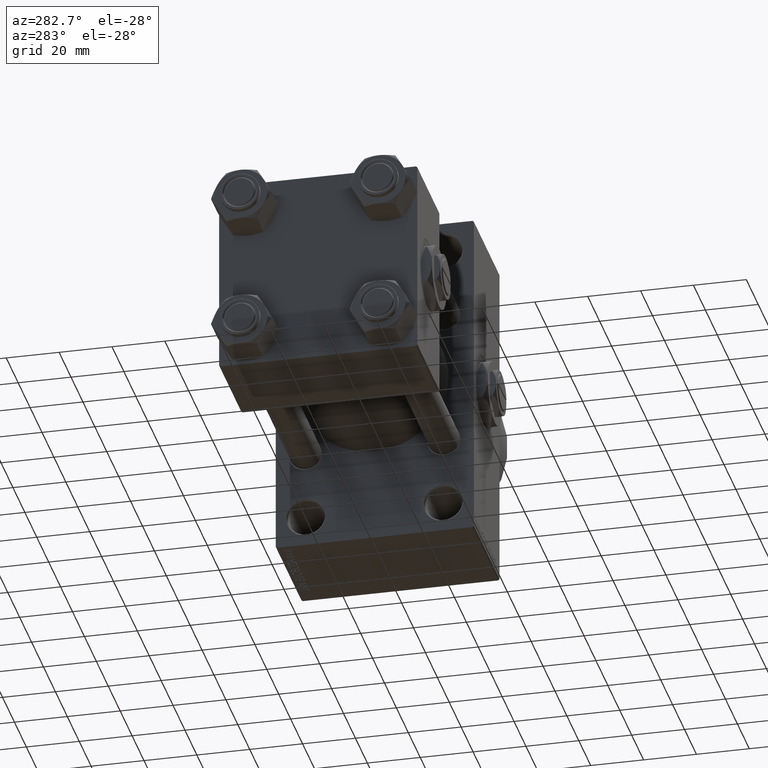
[diagram: clean part render]
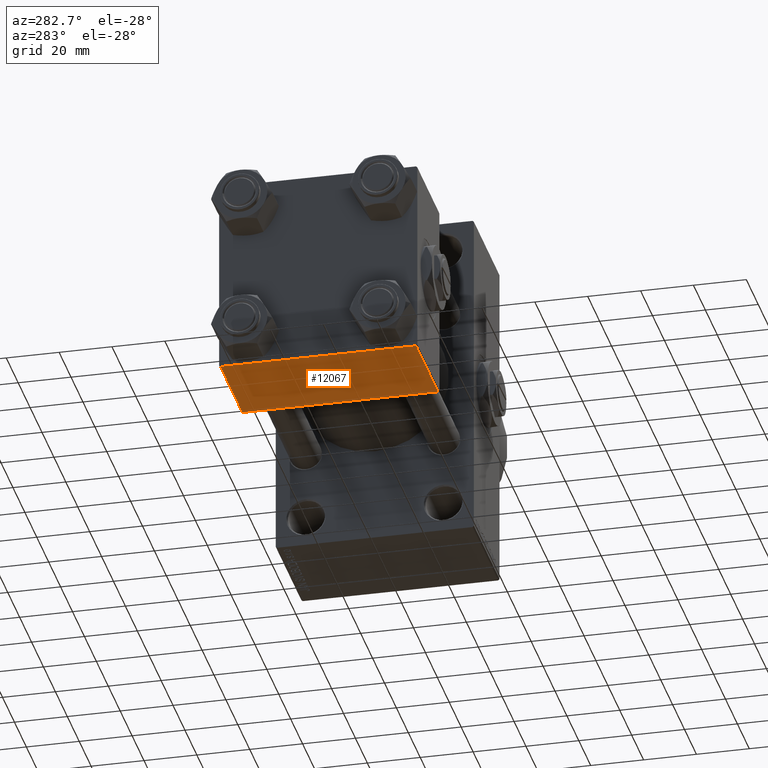
[diagram: same view with one face highlighted and labeled with its STEP entity id]
A machine part, auxiliary view. The second image highlights one B-rep face of the part: STEP entity #12067.
In plain terms, the highlighted planar face has unit normal (0, 0, -1).
Its self-contained STEP definition (entity closure, byte-faithful):
#976 = VECTOR ( 'NONE', #11649, 1000.000000000000000 ) ;
#3641 = LINE ( 'NONE', #26267, #976 ) ;
#5748 = EDGE_CURVE ( 'NONE', #46228, #17312, #3641, .T. ) ;
#7141 = ORIENTED_EDGE ( 'NONE', *, *, #24576, .T. ) ;
#7584 = DIRECTION ( 'NONE',  ( 0.000000000000000000, -1.000000000000000000, -9.251858538542972814E-17 ) ) ;
#10137 = DIRECTION ( 'NONE',  ( -1.000000000000000000, 0.000000000000000000, 0.000000000000000000 ) ) ;
#10869 = LINE ( 'NONE', #18432, #12363 ) ;
#11649 = DIRECTION ( 'NONE',  ( 0.000000000000000000, -1.000000000000000000, -9.251858538542972814E-17 ) ) ;
#12067 = ADVANCED_FACE ( 'NONE', ( #31077 ), #42669, .T. ) ;
#12226 = DIRECTION ( 'NONE',  ( 0.000000000000000000, 1.000000000000000000, 9.251858538542972814E-17 ) ) ;
#12363 = VECTOR ( 'NONE', #10137, 1000.000000000000000 ) ;
#14318 = EDGE_CURVE ( 'NONE', #15974, #17312, #10869, .T. ) ;
#14653 = ORIENTED_EDGE ( 'NONE', *, *, #5748, .F. ) ;
#15974 = VERTEX_POINT ( 'NONE', #29177 ) ;
#16008 = CARTESIAN_POINT ( 'NONE',  ( 0.000000000000000000, -37.00000000000002132, -37.50000000000000711 ) ) ;
#17134 = AXIS2_PLACEMENT_3D ( 'NONE', #26573, #30593, #12226 ) ;
#17312 = VERTEX_POINT ( 'NONE', #16008 ) ;
#18432 = CARTESIAN_POINT ( 'NONE',  ( 0.000000000000000000, -37.00000000000002132, -37.50000000000000711 ) ) ;
#18824 = DIRECTION ( 'NONE',  ( 1.000000000000000000, 0.000000000000000000, 0.000000000000000000 ) ) ;
#23082 = LINE ( 'NONE', #26360, #23850 ) ;
#23850 = VECTOR ( 'NONE', #18824, 1000.000000000000000 ) ;
#24576 = EDGE_CURVE ( 'NONE', #46228, #37055, #23082, .T. ) ;
#24752 = CARTESIAN_POINT ( 'NONE',  ( 37.00000000000000000, 36.99999999999997868, -37.50000000000000000 ) ) ;
#26267 = CARTESIAN_POINT ( 'NONE',  ( 0.000000000000000000, 37.49999999999999289, -37.50000000000000000 ) ) ;
#26360 = CARTESIAN_POINT ( 'NONE',  ( 37.00000000000000000, 36.99999999999997868, -37.50000000000000000 ) ) ;
#26573 = CARTESIAN_POINT ( 'NONE',  ( 37.00000000000000000, 37.49999999999999289, -37.50000000000000000 ) ) ;
#27037 = CARTESIAN_POINT ( 'NONE',  ( 0.000000000000000000, 36.99999999999997868, -37.50000000000000000 ) ) ;
#29177 = CARTESIAN_POINT ( 'NONE',  ( 37.00000000000000000, -37.00000000000002132, -37.50000000000000711 ) ) ;
#30593 = DIRECTION ( 'NONE',  ( 0.000000000000000000, 9.251858538542972814E-17, -1.000000000000000000 ) ) ;
#31077 = FACE_OUTER_BOUND ( 'NONE', #40425, .T. ) ;
#32759 = ORIENTED_EDGE ( 'NONE', *, *, #47667, .T. ) ;
#35308 = VECTOR ( 'NONE', #7584, 1000.000000000000000 ) ;
#37055 = VERTEX_POINT ( 'NONE', #24752 ) ;
#37549 = ORIENTED_EDGE ( 'NONE', *, *, #14318, .T. ) ;
#38510 = LINE ( 'NONE', #46308, #35308 ) ;
#40425 = EDGE_LOOP ( 'NONE', ( #14653, #7141, #32759, #37549 ) ) ;
#42669 = PLANE ( 'NONE',  #17134 ) ;
#46228 = VERTEX_POINT ( 'NONE', #27037 ) ;
#46308 = CARTESIAN_POINT ( 'NONE',  ( 37.00000000000000000, 37.49999999999999289, -37.50000000000000000 ) ) ;
#47667 = EDGE_CURVE ( 'NONE', #37055, #15974, #38510, .T. ) ;